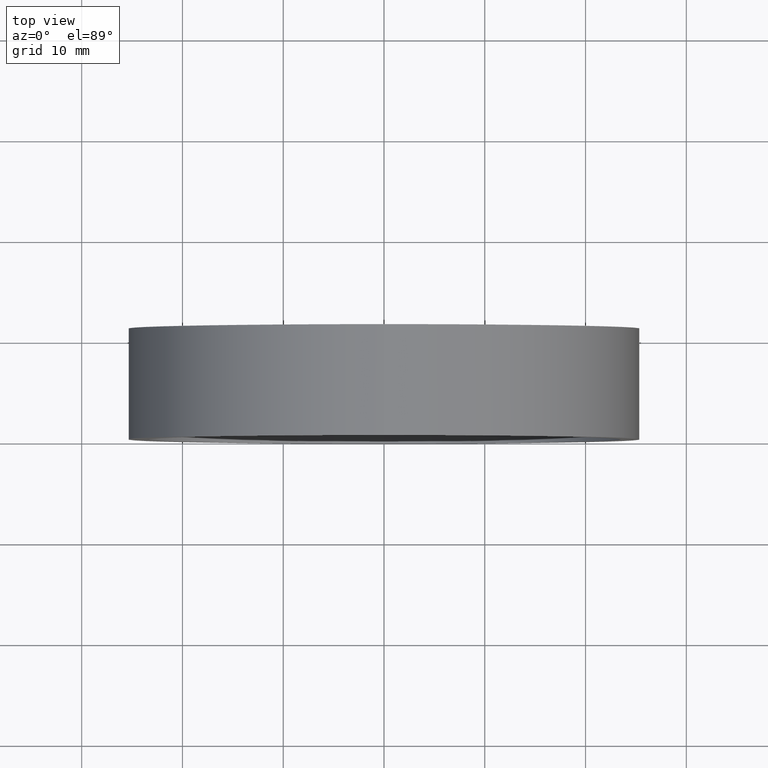
[diagram: clean part render]
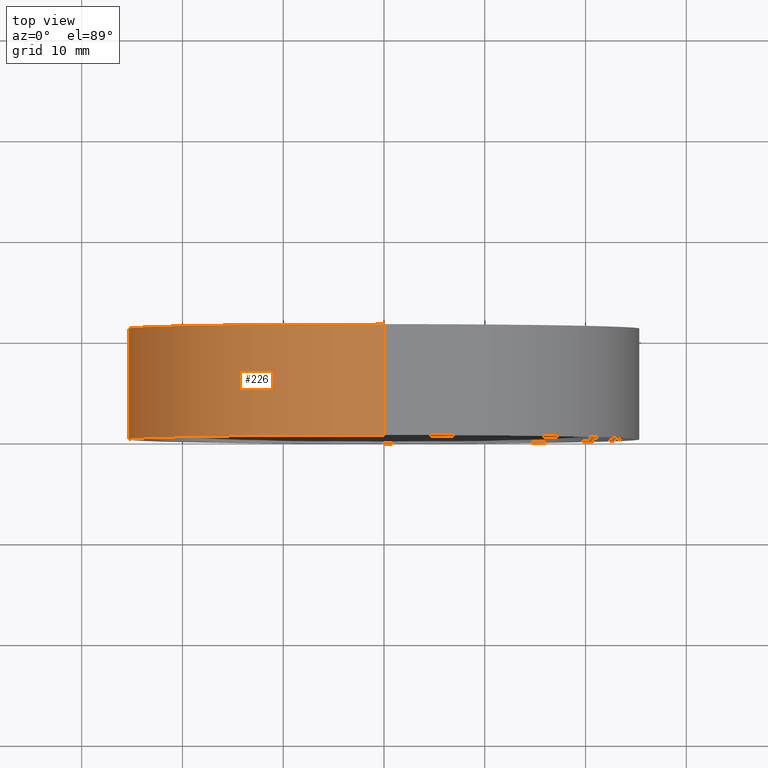
[diagram: same view with one face highlighted and labeled with its STEP entity id]
A machine part, top view. The second image highlights one B-rep face of the part: STEP entity #226.
In plain terms, the highlighted cylindrical surface (partial cylindrical patch) has radius 25.4 mm, axis along (-0, -1, -0).
Its self-contained STEP definition (entity closure, byte-faithful):
#7 = ORIENTED_EDGE ( 'NONE', *, *, #42, .T. ) ;
#10 = DIRECTION ( 'NONE',  ( -0.0000000000000000000, -1.000000000000000000, -0.0000000000000000000 ) ) ;
#13 = DIRECTION ( 'NONE',  ( 0.0000000000000000000, 0.0000000000000000000, -1.000000000000000000 ) ) ;
#17 = AXIS2_PLACEMENT_3D ( 'NONE', #123, #48, #89 ) ;
#20 = DIRECTION ( 'NONE',  ( 0.0000000000000000000, 0.0000000000000000000, 1.000000000000000000 ) ) ;
#21 = EDGE_CURVE ( 'NONE', #144, #159, #173, .T. ) ;
#29 = CARTESIAN_POINT ( 'NONE',  ( 3.110602869834276900E-015, 11.00000000000000000, 25.39999999999999900 ) ) ;
#35 = FACE_OUTER_BOUND ( 'NONE', #228, .T. ) ;
#39 = EDGE_CURVE ( 'NONE', #144, #168, #244, .T. ) ;
#42 = EDGE_CURVE ( 'NONE', #159, #192, #110, .T. ) ;
#48 = DIRECTION ( 'NONE',  ( 0.0000000000000000000, 1.000000000000000000, 0.0000000000000000000 ) ) ;
#49 = CARTESIAN_POINT ( 'NONE',  ( 0.0000000000000000000, 0.0000000000000000000, 0.0000000000000000000 ) ) ;
#51 = ORIENTED_EDGE ( 'NONE', *, *, #39, .F. ) ;
#63 = LINE ( 'NONE', #29, #82 ) ;
#68 = EDGE_CURVE ( 'NONE', #168, #192, #63, .T. ) ;
#74 = CARTESIAN_POINT ( 'NONE',  ( 0.0000000000000000000, 11.00000000000000000, 0.0000000000000000000 ) ) ;
#82 = VECTOR ( 'NONE', #196, 1000.000000000000000 ) ;
#84 = DIRECTION ( 'NONE',  ( -0.0000000000000000000, -1.000000000000000000, -0.0000000000000000000 ) ) ;
#89 = DIRECTION ( 'NONE',  ( 0.0000000000000000000, 0.0000000000000000000, 1.000000000000000000 ) ) ;
#90 = CARTESIAN_POINT ( 'NONE',  ( 3.110602869834276900E-015, 11.00000000000000000, 25.39999999999999900 ) ) ;
#104 = ORIENTED_EDGE ( 'NONE', *, *, #68, .F. ) ;
#107 = CARTESIAN_POINT ( 'NONE',  ( 0.0000000000000000000, 11.00000000000000000, -25.39999999999999900 ) ) ;
#110 = CIRCLE ( 'NONE', #130, 25.39999999999999900 ) ;
#117 = CARTESIAN_POINT ( 'NONE',  ( 0.0000000000000000000, 0.0000000000000000000, -25.39999999999999900 ) ) ;
#121 = CYLINDRICAL_SURFACE ( 'NONE', #169, 25.39999999999999900 ) ;
#123 = CARTESIAN_POINT ( 'NONE',  ( 0.0000000000000000000, 11.00000000000000000, 0.0000000000000000000 ) ) ;
#129 = DIRECTION ( 'NONE',  ( 0.0000000000000000000, 1.000000000000000000, 0.0000000000000000000 ) ) ;
#130 = AXIS2_PLACEMENT_3D ( 'NONE', #49, #129, #20 ) ;
#144 = VERTEX_POINT ( 'NONE', #208 ) ;
#159 = VERTEX_POINT ( 'NONE', #117 ) ;
#168 = VERTEX_POINT ( 'NONE', #90 ) ;
#169 = AXIS2_PLACEMENT_3D ( 'NONE', #74, #10, #13 ) ;
#173 = LINE ( 'NONE', #107, #240 ) ;
#176 = ORIENTED_EDGE ( 'NONE', *, *, #21, .T. ) ;
#184 = CARTESIAN_POINT ( 'NONE',  ( 3.110602869834276900E-015, 0.0000000000000000000, 25.39999999999999900 ) ) ;
#192 = VERTEX_POINT ( 'NONE', #184 ) ;
#196 = DIRECTION ( 'NONE',  ( -0.0000000000000000000, -1.000000000000000000, -0.0000000000000000000 ) ) ;
#208 = CARTESIAN_POINT ( 'NONE',  ( 0.0000000000000000000, 11.00000000000000000, -25.39999999999999900 ) ) ;
#226 = ADVANCED_FACE ( 'NONE', ( #35 ), #121, .T. ) ;
#228 = EDGE_LOOP ( 'NONE', ( #104, #51, #176, #7 ) ) ;
#240 = VECTOR ( 'NONE', #84, 1000.000000000000000 ) ;
#244 = CIRCLE ( 'NONE', #17, 25.39999999999999900 ) ;